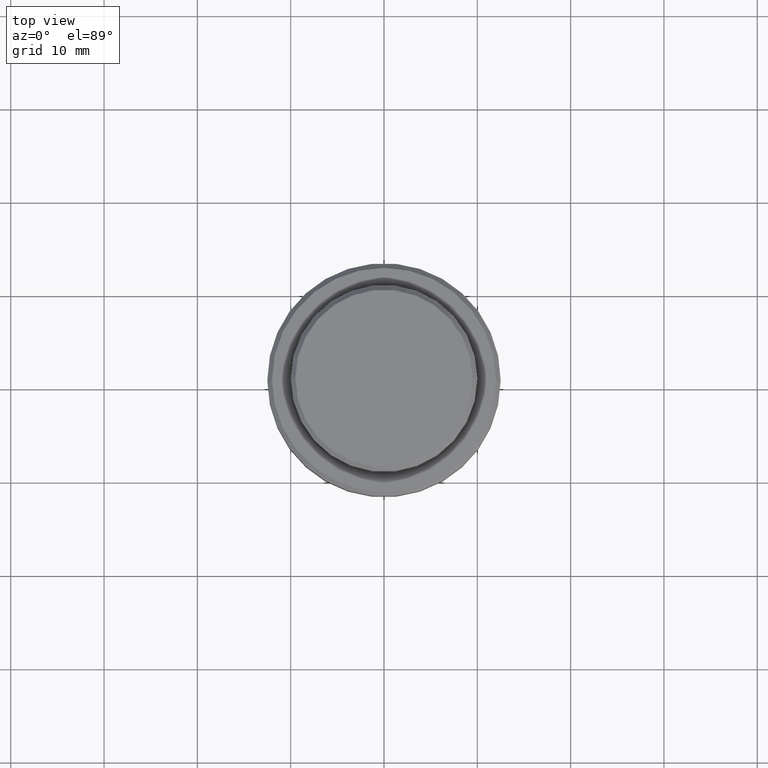
[diagram: clean part render]
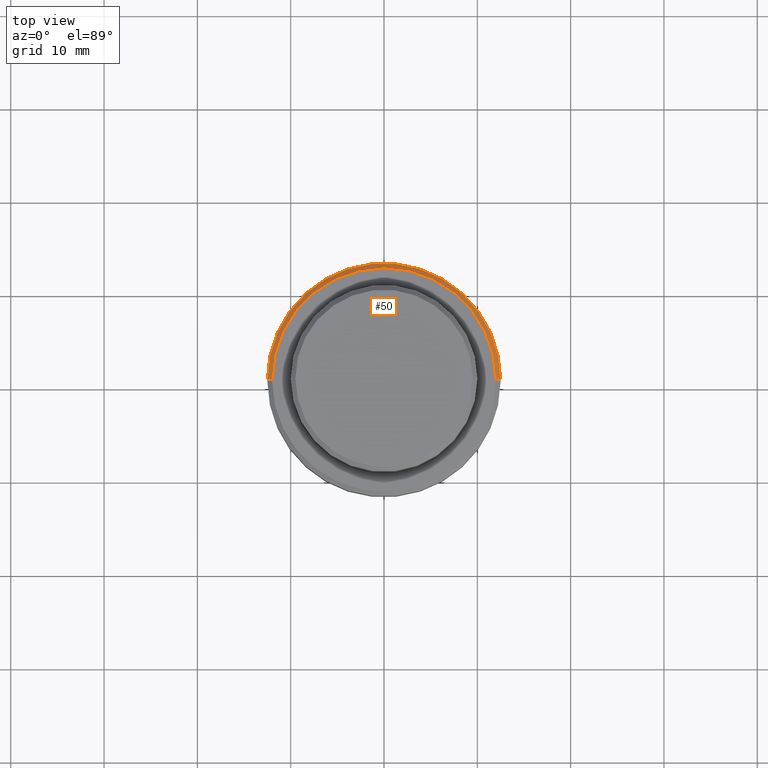
[diagram: same view with one face highlighted and labeled with its STEP entity id]
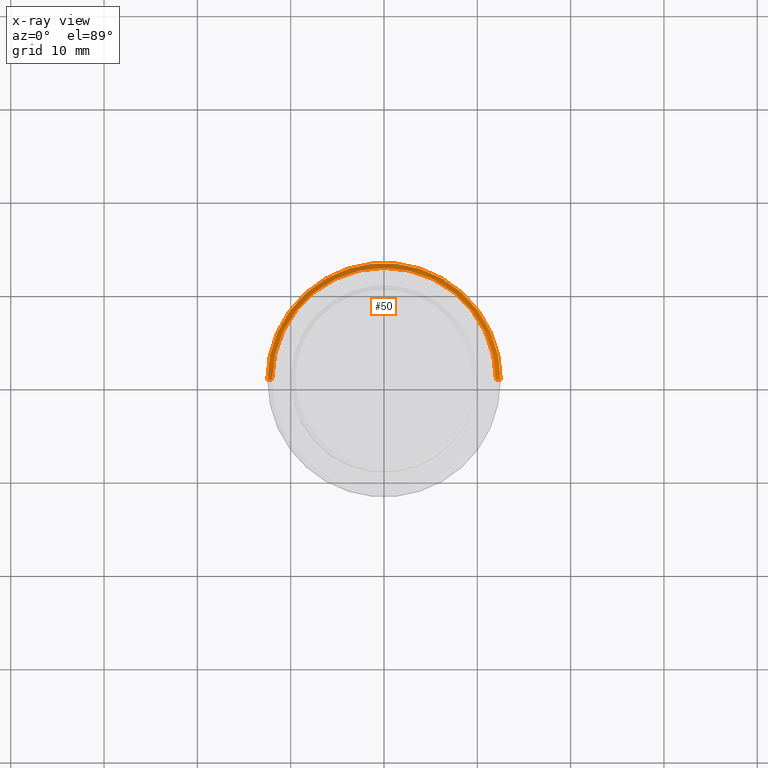
[diagram: x-ray of the same camera — body ghosted, the highlighted face saturated]
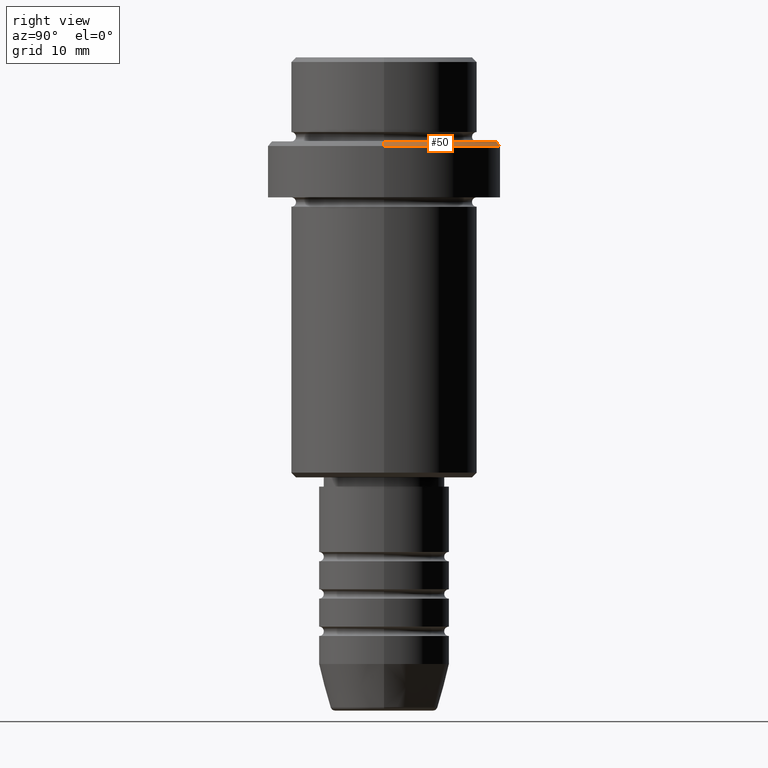
[diagram: same view with one face highlighted and labeled with its STEP entity id]
A machine part, top view. The second image highlights one B-rep face of the part: STEP entity #50.
The next image is the same camera in x-ray: the body ghosted, the highlighted face saturated — about 0% of this face is hidden behind the body in this view.
A second angle (right view) of the same face is appended — the face is thin or edge-on in the first view.
In plain terms, the highlighted conical surface has half-angle 45 deg.
Its self-contained STEP definition (entity closure, byte-faithful):
#20 = DIRECTION ( 'NONE',  ( 1.000000000000000000, 0.000000000000000000, 0.000000000000000000 ) ) ;
#50 = ADVANCED_FACE ( 'NONE', ( #322 ), #172, .T. ) ;
#52 = EDGE_CURVE ( 'NONE', #517, #849, #799, .T. ) ;
#99 = AXIS2_PLACEMENT_3D ( 'NONE', #764, #1302, #1087 ) ;
#108 = CARTESIAN_POINT ( 'NONE',  ( 12.00000000000000355, 1.500192328955507734E-15, -9.000000000000001776 ) ) ;
#109 = ORIENTED_EDGE ( 'NONE', *, *, #1372, .F. ) ;
#172 = CONICAL_SURFACE ( 'NONE', #358, 12.00000000000000355, 0.7853981633974327359 ) ;
#224 = VECTOR ( 'NONE', #1108, 1000.000000000000114 ) ;
#322 = FACE_OUTER_BOUND ( 'NONE', #1112, .T. ) ;
#323 = LINE ( 'NONE', #659, #224 ) ;
#348 = ORIENTED_EDGE ( 'NONE', *, *, #52, .F. ) ;
#358 = AXIS2_PLACEMENT_3D ( 'NONE', #551, #876, #658 ) ;
#384 = CARTESIAN_POINT ( 'NONE',  ( -12.50000000000000000, 1.530808498934191521E-15, -9.500000000000014211 ) ) ;
#385 = ORIENTED_EDGE ( 'NONE', *, *, #499, .T. ) ;
#489 = AXIS2_PLACEMENT_3D ( 'NONE', #654, #562, #20 ) ;
#499 = EDGE_CURVE ( 'NONE', #517, #1225, #1104, .T. ) ;
#517 = VERTEX_POINT ( 'NONE', #108 ) ;
#518 = CARTESIAN_POINT ( 'NONE',  ( 12.50000000000000000, 0.000000000000000000, -9.500000000000014211 ) ) ;
#551 = CARTESIAN_POINT ( 'NONE',  ( 0.000000000000000000, 0.000000000000000000, -9.000000000000001776 ) ) ;
#562 = DIRECTION ( 'NONE',  ( 0.000000000000000000, 0.000000000000000000, -1.000000000000000000 ) ) ;
#582 = VECTOR ( 'NONE', #891, 1000.000000000000114 ) ;
#617 = ORIENTED_EDGE ( 'NONE', *, *, #917, .F. ) ;
#654 = CARTESIAN_POINT ( 'NONE',  ( 0.000000000000000000, 0.000000000000000000, -9.500000000000014211 ) ) ;
#658 = DIRECTION ( 'NONE',  ( -1.000000000000000000, 0.000000000000000000, 0.000000000000000000 ) ) ;
#659 = CARTESIAN_POINT ( 'NONE',  ( -12.00000000000000355, 0.000000000000000000, -9.000000000000001776 ) ) ;
#764 = CARTESIAN_POINT ( 'NONE',  ( 0.000000000000000000, 0.000000000000000000, -9.000000000000001776 ) ) ;
#799 = CIRCLE ( 'NONE', #99, 12.00000000000000355 ) ;
#849 = VERTEX_POINT ( 'NONE', #1393 ) ;
#876 = DIRECTION ( 'NONE',  ( 0.000000000000000000, 0.000000000000000000, -1.000000000000000000 ) ) ;
#891 = DIRECTION ( 'NONE',  ( 0.7071067811865365815, 8.659560562354799738E-17, -0.7071067811865584529 ) ) ;
#917 = EDGE_CURVE ( 'NONE', #999, #1225, #1074, .T. ) ;
#999 = VERTEX_POINT ( 'NONE', #384 ) ;
#1074 = CIRCLE ( 'NONE', #489, 12.50000000000000000 ) ;
#1087 = DIRECTION ( 'NONE',  ( 1.000000000000000000, 0.000000000000000000, 0.000000000000000000 ) ) ;
#1104 = LINE ( 'NONE', #1224, #582 ) ;
#1108 = DIRECTION ( 'NONE',  ( -0.7071067811865365815, 0.000000000000000000, -0.7071067811865584529 ) ) ;
#1112 = EDGE_LOOP ( 'NONE', ( #348, #385, #617, #109 ) ) ;
#1224 = CARTESIAN_POINT ( 'NONE',  ( 12.00000000000000355, 1.469576158976824342E-15, -9.000000000000001776 ) ) ;
#1225 = VERTEX_POINT ( 'NONE', #518 ) ;
#1302 = DIRECTION ( 'NONE',  ( -0.000000000000000000, -0.000000000000000000, 1.000000000000000000 ) ) ;
#1372 = EDGE_CURVE ( 'NONE', #849, #999, #323, .T. ) ;
#1393 = CARTESIAN_POINT ( 'NONE',  ( -12.00000000000000355, 0.000000000000000000, -9.000000000000001776 ) ) ;